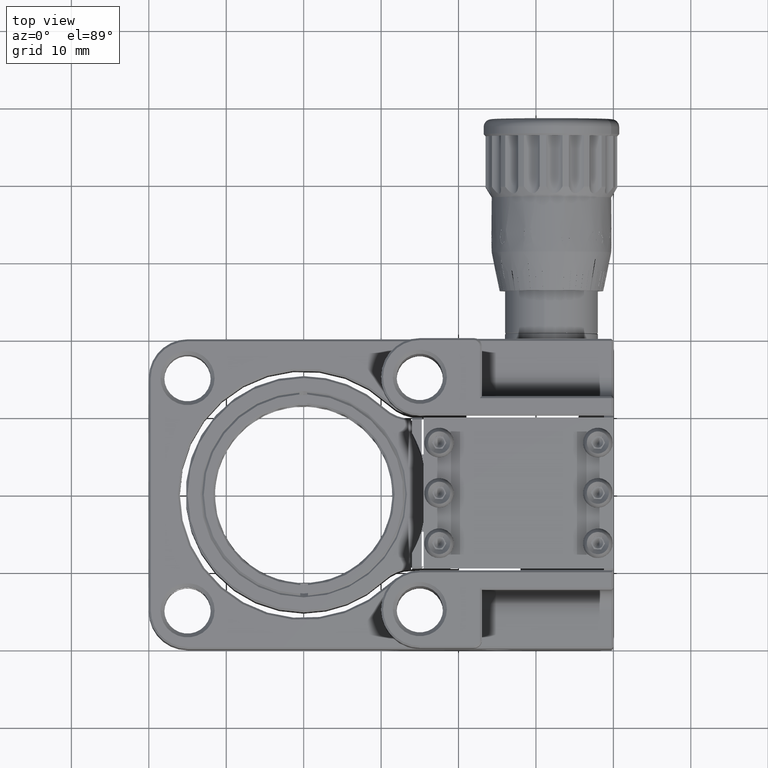
[diagram: clean part render]
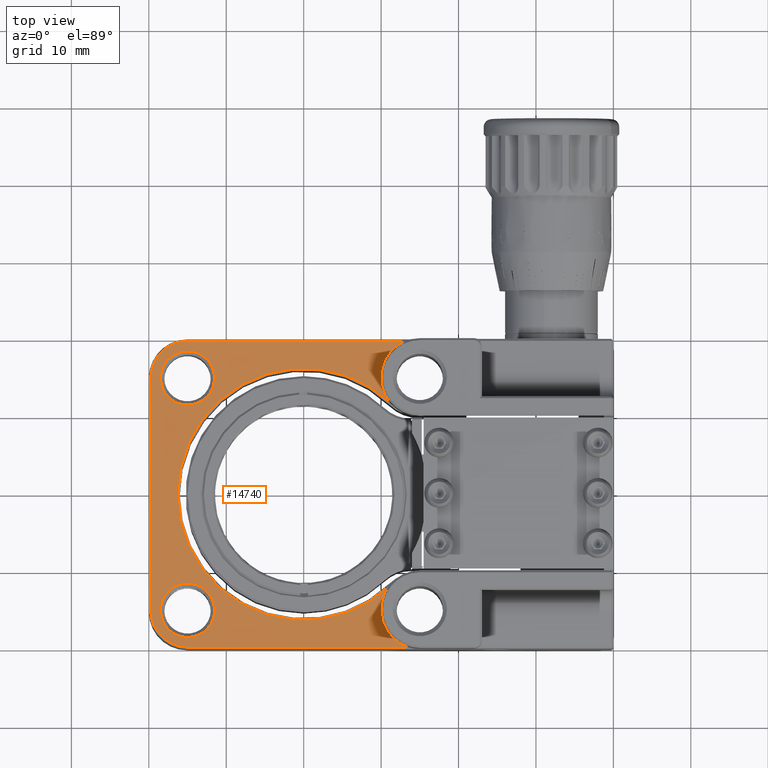
[diagram: same view with one face highlighted and labeled with its STEP entity id]
A machine part, top view. The second image highlights one B-rep face of the part: STEP entity #14740.
In plain terms, the highlighted planar face has unit normal (-0, 0, 1).
Its self-contained STEP definition (entity closure, byte-faithful):
#396 = AXIS2_PLACEMENT_3D ( 'NONE', #20194, #20044, #27433 ) ;
#474 = ORIENTED_EDGE ( 'NONE', *, *, #27519, .T. ) ;
#545 = ORIENTED_EDGE ( 'NONE', *, *, #3231, .T. ) ;
#766 = CIRCLE ( 'NONE', #19391, 5.000000000000000888 ) ;
#769 = CARTESIAN_POINT ( 'NONE',  ( -15.00000000000000355, 19.74999999999999289, 5.599999999999999645 ) ) ;
#797 = VERTEX_POINT ( 'NONE', #1583 ) ;
#1005 = ORIENTED_EDGE ( 'NONE', *, *, #42065, .T. ) ;
#1035 = DIRECTION ( 'NONE',  ( 1.000000000000000000, 0.000000000000000000, 0.000000000000000000 ) ) ;
#1298 = EDGE_LOOP ( 'NONE', ( #26011, #1720, #20715, #43485, #6495, #3677, #41439, #1005 ) ) ;
#1392 = DIRECTION ( 'NONE',  ( -0.000000000000000000, 0.000000000000000000, 1.000000000000000000 ) ) ;
#1583 = CARTESIAN_POINT ( 'NONE',  ( -11.49999999999999645, 15.00000000000000000, 5.599999999999999645 ) ) ;
#1604 = VERTEX_POINT ( 'NONE', #22143 ) ;
#1720 = ORIENTED_EDGE ( 'NONE', *, *, #27804, .T. ) ;
#1724 = CARTESIAN_POINT ( 'NONE',  ( 15.00000000000000000, 14.99999999999999645, 5.600000000000000533 ) ) ;
#1726 = EDGE_CURVE ( 'NONE', #41616, #44469, #29740, .T. ) ;
#2925 = CARTESIAN_POINT ( 'NONE',  ( -15.00000000000000355, 14.99999999999999289, 5.599999999999999645 ) ) ;
#3231 = EDGE_CURVE ( 'NONE', #41032, #797, #17930, .T. ) ;
#3677 = ORIENTED_EDGE ( 'NONE', *, *, #18610, .T. ) ;
#4031 = VECTOR ( 'NONE', #35057, 1000.000000000000000 ) ;
#4471 = VERTEX_POINT ( 'NONE', #4869 ) ;
#4562 = CIRCLE ( 'NONE', #32530, 3.500000000000003109 ) ;
#4726 = CIRCLE ( 'NONE', #46362, 16.24999999999999289 ) ;
#4832 = DIRECTION ( 'NONE',  ( 0.000000000000000000, -0.000000000000000000, -1.000000000000000000 ) ) ;
#4869 = CARTESIAN_POINT ( 'NONE',  ( 13.43875050040038666, 19.74999999999999289, 5.600000000000000533 ) ) ;
#5045 = DIRECTION ( 'NONE',  ( 1.000000000000000000, 0.000000000000000000, 0.000000000000000000 ) ) ;
#5263 = EDGE_CURVE ( 'NONE', #4471, #33128, #23870, .T. ) ;
#5278 = AXIS2_PLACEMENT_3D ( 'NONE', #6238, #17539, #43579 ) ;
#5711 = AXIS2_PLACEMENT_3D ( 'NONE', #34372, #38048, #15986 ) ;
#6208 = CARTESIAN_POINT ( 'NONE',  ( -19.75000000000000355, 14.99999999999999289, 5.599999999999999645 ) ) ;
#6238 = CARTESIAN_POINT ( 'NONE',  ( 15.00000000000000000, -14.99999999999999645, 5.600000000000000533 ) ) ;
#6495 = ORIENTED_EDGE ( 'NONE', *, *, #46523, .T. ) ;
#6874 = DIRECTION ( 'NONE',  ( 1.000000000000000000, 0.000000000000000000, 0.000000000000000000 ) ) ;
#8906 = VERTEX_POINT ( 'NONE', #11893 ) ;
#9326 = CARTESIAN_POINT ( 'NONE',  ( -15.00000000000000000, 15.00000000000000000, 5.599999999999999645 ) ) ;
#9856 = EDGE_CURVE ( 'NONE', #8906, #34925, #38462, .T. ) ;
#10714 = VECTOR ( 'NONE', #39366, 1000.000000000000000 ) ;
#11367 = CARTESIAN_POINT ( 'NONE',  ( 0.000000000000000000, 0.000000000000000000, 5.599999999999999645 ) ) ;
#11893 = CARTESIAN_POINT ( 'NONE',  ( 13.43875050040042751, -19.75000000000000711, 5.600000000000000533 ) ) ;
#12045 = FACE_OUTER_BOUND ( 'NONE', #1298, .T. ) ;
#13086 = DIRECTION ( 'NONE',  ( 1.000000000000000000, 0.000000000000000000, 0.000000000000000000 ) ) ;
#13199 = FACE_BOUND ( 'NONE', #45078, .T. ) ;
#14047 = AXIS2_PLACEMENT_3D ( 'NONE', #26776, #4832, #13086 ) ;
#14093 = DIRECTION ( 'NONE',  ( 8.673617379884035472E-17, -1.000000000000000000, 0.000000000000000000 ) ) ;
#14506 = CARTESIAN_POINT ( 'NONE',  ( -18.50000000000000000, -15.00000000000000000, 5.599999999999999645 ) ) ;
#14740 = ADVANCED_FACE ( 'NONE', ( #32817, #13199, #12045 ), #29327, .T. ) ;
#14999 = EDGE_CURVE ( 'NONE', #4471, #20459, #766, .T. ) ;
#15250 = CARTESIAN_POINT ( 'NONE',  ( -18.50000000000000355, 15.00000000000000000, 5.599999999999999645 ) ) ;
#15986 = DIRECTION ( 'NONE',  ( 1.000000000000000000, 0.000000000000000000, 0.000000000000000000 ) ) ;
#17483 = CARTESIAN_POINT ( 'NONE',  ( -15.00000000000000355, 19.74999999999999289, 5.599999999999999645 ) ) ;
#17539 = DIRECTION ( 'NONE',  ( 0.000000000000000000, -0.000000000000000000, -1.000000000000000000 ) ) ;
#17930 = CIRCLE ( 'NONE', #5711, 3.500000000000003109 ) ;
#18610 = EDGE_CURVE ( 'NONE', #32854, #41616, #25601, .T. ) ;
#19215 = CARTESIAN_POINT ( 'NONE',  ( -15.00000000000000000, -15.00000000000000711, 5.599999999999999645 ) ) ;
#19391 = AXIS2_PLACEMENT_3D ( 'NONE', #1724, #1392, #5045 ) ;
#20044 = DIRECTION ( 'NONE',  ( 0.000000000000000000, -0.000000000000000000, -1.000000000000000000 ) ) ;
#20143 = CARTESIAN_POINT ( 'NONE',  ( -19.75000000000000355, -15.00000000000001066, 5.599999999999999645 ) ) ;
#20194 = CARTESIAN_POINT ( 'NONE',  ( -14.99999999999999645, -15.00000000000000000, 5.599999999999999645 ) ) ;
#20459 = VERTEX_POINT ( 'NONE', #46150 ) ;
#20715 = ORIENTED_EDGE ( 'NONE', *, *, #14999, .F. ) ;
#20736 = CARTESIAN_POINT ( 'NONE',  ( 14.99999999999999112, -19.75000000000000711, 5.599999999999999645 ) ) ;
#21625 = EDGE_CURVE ( 'NONE', #797, #41032, #4562, .T. ) ;
#22143 = CARTESIAN_POINT ( 'NONE',  ( -11.49999999999999289, -15.00000000000000000, 5.599999999999999645 ) ) ;
#23278 = VECTOR ( 'NONE', #14093, 1000.000000000000000 ) ;
#23446 = DIRECTION ( 'NONE',  ( 0.000000000000000000, -0.000000000000000000, -1.000000000000000000 ) ) ;
#23870 = LINE ( 'NONE', #17483, #10714 ) ;
#25601 = LINE ( 'NONE', #39815, #23278 ) ;
#26011 = ORIENTED_EDGE ( 'NONE', *, *, #9856, .T. ) ;
#26776 = CARTESIAN_POINT ( 'NONE',  ( -14.99999999999999645, -15.00000000000000000, 5.599999999999999645 ) ) ;
#26925 = LINE ( 'NONE', #20736, #4031 ) ;
#27049 = EDGE_LOOP ( 'NONE', ( #33328, #545 ) ) ;
#27433 = DIRECTION ( 'NONE',  ( 1.000000000000000000, 0.000000000000000000, 0.000000000000000000 ) ) ;
#27519 = EDGE_CURVE ( 'NONE', #39556, #1604, #39193, .T. ) ;
#27767 = AXIS2_PLACEMENT_3D ( 'NONE', #2925, #32248, #35616 ) ;
#27804 = EDGE_CURVE ( 'NONE', #34925, #20459, #4726, .T. ) ;
#29327 = PLANE ( 'NONE',  #44893 ) ;
#29337 = EDGE_CURVE ( 'NONE', #1604, #39556, #34894, .T. ) ;
#29525 = DIRECTION ( 'NONE',  ( 1.000000000000000000, 0.000000000000000000, 0.000000000000000000 ) ) ;
#29740 = CIRCLE ( 'NONE', #47075, 4.750000000000000888 ) ;
#32248 = DIRECTION ( 'NONE',  ( -0.000000000000000000, 0.000000000000000000, 1.000000000000000000 ) ) ;
#32363 = CARTESIAN_POINT ( 'NONE',  ( -15.00000000000000000, -19.75000000000000711, 5.599999999999999645 ) ) ;
#32530 = AXIS2_PLACEMENT_3D ( 'NONE', #9326, #23446, #45379 ) ;
#32817 = FACE_BOUND ( 'NONE', #27049, .T. ) ;
#32854 = VERTEX_POINT ( 'NONE', #6208 ) ;
#33128 = VERTEX_POINT ( 'NONE', #769 ) ;
#33328 = ORIENTED_EDGE ( 'NONE', *, *, #21625, .T. ) ;
#33399 = DIRECTION ( 'NONE',  ( 0.000000000000000000, -0.000000000000000000, -1.000000000000000000 ) ) ;
#34372 = CARTESIAN_POINT ( 'NONE',  ( -15.00000000000000000, 15.00000000000000000, 5.599999999999999645 ) ) ;
#34894 = CIRCLE ( 'NONE', #14047, 3.500000000000003109 ) ;
#34925 = VERTEX_POINT ( 'NONE', #37067 ) ;
#35057 = DIRECTION ( 'NONE',  ( 1.000000000000000000, 0.000000000000000000, 0.000000000000000000 ) ) ;
#35616 = DIRECTION ( 'NONE',  ( 1.000000000000000000, 0.000000000000000000, 0.000000000000000000 ) ) ;
#37067 = CARTESIAN_POINT ( 'NONE',  ( 11.10970066224119890, -11.85904933775879222, 5.600000000000000533 ) ) ;
#38048 = DIRECTION ( 'NONE',  ( 0.000000000000000000, -0.000000000000000000, -1.000000000000000000 ) ) ;
#38140 = CIRCLE ( 'NONE', #27767, 4.750000000000000888 ) ;
#38462 = CIRCLE ( 'NONE', #5278, 5.000000000000000888 ) ;
#39193 = CIRCLE ( 'NONE', #396, 3.500000000000003109 ) ;
#39366 = DIRECTION ( 'NONE',  ( -1.000000000000000000, 0.000000000000000000, -0.000000000000000000 ) ) ;
#39556 = VERTEX_POINT ( 'NONE', #14506 ) ;
#39815 = CARTESIAN_POINT ( 'NONE',  ( -19.75000000000000355, -15.00000000000001066, 5.599999999999999645 ) ) ;
#40354 = DIRECTION ( 'NONE',  ( -0.000000000000000000, 0.000000000000000000, 1.000000000000000000 ) ) ;
#41032 = VERTEX_POINT ( 'NONE', #15250 ) ;
#41439 = ORIENTED_EDGE ( 'NONE', *, *, #1726, .T. ) ;
#41616 = VERTEX_POINT ( 'NONE', #20143 ) ;
#42065 = EDGE_CURVE ( 'NONE', #44469, #8906, #26925, .T. ) ;
#43068 = ORIENTED_EDGE ( 'NONE', *, *, #29337, .T. ) ;
#43485 = ORIENTED_EDGE ( 'NONE', *, *, #5263, .T. ) ;
#43579 = DIRECTION ( 'NONE',  ( 1.000000000000000000, 1.040834085586084059E-15, 0.000000000000000000 ) ) ;
#43733 = CARTESIAN_POINT ( 'NONE',  ( 0.000000000000000000, 0.000000000000000000, 5.599999999999999645 ) ) ;
#44469 = VERTEX_POINT ( 'NONE', #32363 ) ;
#44876 = DIRECTION ( 'NONE',  ( -0.000000000000000000, 0.000000000000000000, 1.000000000000000000 ) ) ;
#44893 = AXIS2_PLACEMENT_3D ( 'NONE', #43733, #40354, #6874 ) ;
#45078 = EDGE_LOOP ( 'NONE', ( #43068, #474 ) ) ;
#45379 = DIRECTION ( 'NONE',  ( 1.000000000000000000, 0.000000000000000000, 0.000000000000000000 ) ) ;
#46150 = CARTESIAN_POINT ( 'NONE',  ( 11.10970066224119890, 11.85904933775879222, 5.600000000000000533 ) ) ;
#46362 = AXIS2_PLACEMENT_3D ( 'NONE', #11367, #33399, #29525 ) ;
#46523 = EDGE_CURVE ( 'NONE', #33128, #32854, #38140, .T. ) ;
#47075 = AXIS2_PLACEMENT_3D ( 'NONE', #19215, #44876, #1035 ) ;